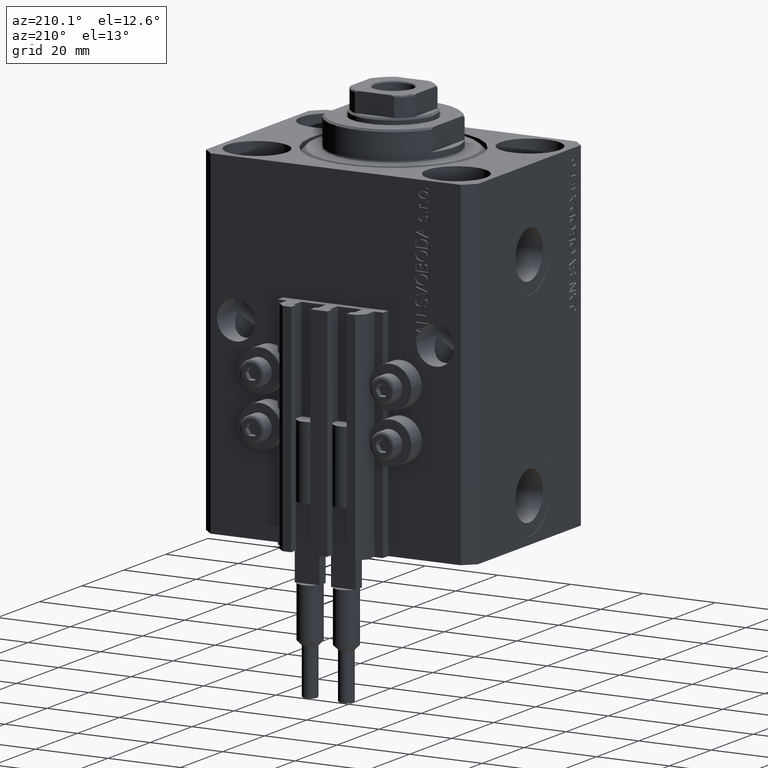
[diagram: clean part render]
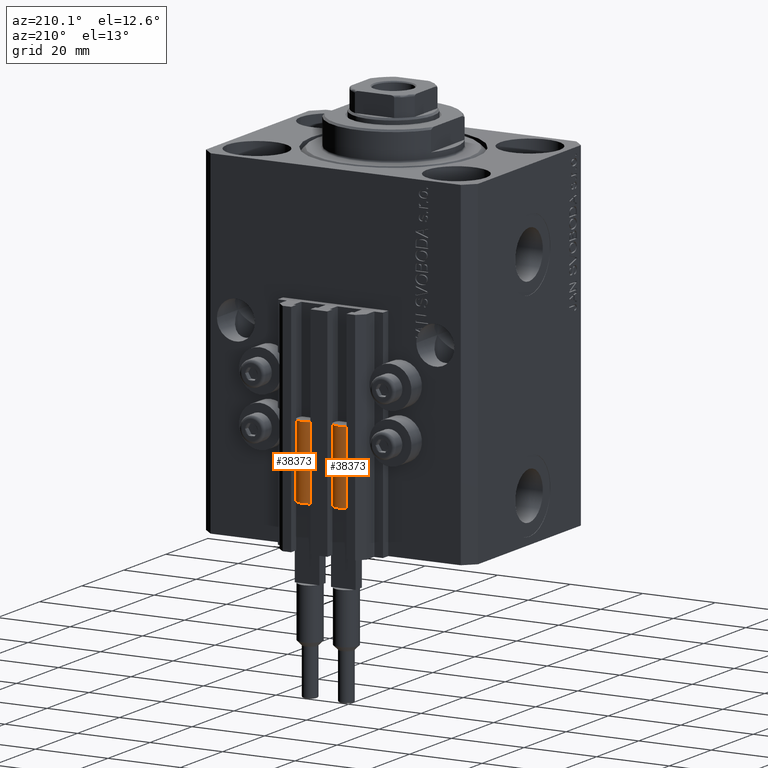
[diagram: same view with one multi-face feature highlighted, each face labeled with its STEP entity id]
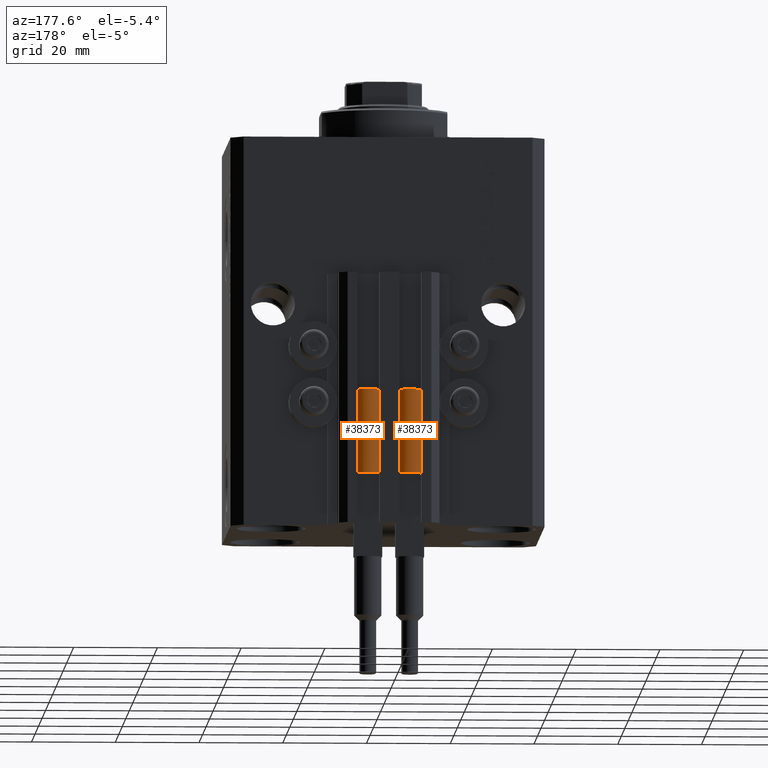
[diagram: same view with one multi-face feature highlighted, each face labeled with its STEP entity id]
A machine part, auxiliary view. The highlighted faces form ONE feature: a constant-radius fillet chain: 2 tangent blend faces with common blend radius 3.4 mm. The faces share edges in the B-rep.
A second angle (auxiliary view) of the same feature is appended — it is thin or edge-on in the first view.
Their STEP definitions:
[1] entity #38373 (Cylinder):
#130 = CARTESIAN_POINT ( 'NONE',  ( 0.000000000000000000, 0.000000000000000000, 20.00000000000000000 ) ) ;
#1559 = CARTESIAN_POINT ( 'NONE',  ( -3.399999999999999467, -4.915049848600952119E-16, 20.00000000000000000 ) ) ;
#3089 = CARTESIAN_POINT ( 'NONE',  ( 0.000000000000000000, 0.000000000000000000, 20.00000000000000000 ) ) ;
#3621 = AXIS2_PLACEMENT_3D ( 'NONE', #8976, #31358, #27260 ) ;
#3744 = VERTEX_POINT ( 'NONE', #26042 ) ;
#4421 = CIRCLE ( 'NONE', #19223, 3.400000000000000355 ) ;
#5318 = FACE_OUTER_BOUND ( 'NONE', #16801, .T. ) ;
#6506 = CARTESIAN_POINT ( 'NONE',  ( 3.400000000000000355, 0.000000000000000000, 20.00000000000000000 ) ) ;
#7310 = CIRCLE ( 'NONE', #29096, 3.400000000000000355 ) ;
#7380 = VECTOR ( 'NONE', #9271, 1000.000000000000000 ) ;
#8976 = CARTESIAN_POINT ( 'NONE',  ( 0.000000000000000000, 0.000000000000000000, 20.00000000000000000 ) ) ;
#9271 = DIRECTION ( 'NONE',  ( -0.000000000000000000, -0.000000000000000000, -1.000000000000000000 ) ) ;
#9299 = CARTESIAN_POINT ( 'NONE',  ( 3.400000000000000355, 4.163799117101001052E-16, 0.000000000000000000 ) ) ;
#9605 = CIRCLE ( 'NONE', #31337, 3.400000000000000355 ) ;
#9788 = ORIENTED_EDGE ( 'NONE', *, *, #41863, .F. ) ;
#11339 = LINE ( 'NONE', #47901, #19130 ) ;
#11717 = EDGE_CURVE ( 'NONE', #46635, #11734, #38596, .T. ) ;
#11734 = VERTEX_POINT ( 'NONE', #47213 ) ;
#12396 = CYLINDRICAL_SURFACE ( 'NONE', #3621, 3.400000000000000355 ) ;
#16439 = ORIENTED_EDGE ( 'NONE', *, *, #33607, .F. ) ;
#16801 = EDGE_LOOP ( 'NONE', ( #9788, #47756, #39724, #16439, #47506, #24953 ) ) ;
#18203 = DIRECTION ( 'NONE',  ( 0.000000000000000000, 0.000000000000000000, 1.000000000000000000 ) ) ;
#19130 = VECTOR ( 'NONE', #44711, 1000.000000000000000 ) ;
#19223 = AXIS2_PLACEMENT_3D ( 'NONE', #42965, #24942, #31494 ) ;
#24942 = DIRECTION ( 'NONE',  ( 0.000000000000000000, 0.000000000000000000, 1.000000000000000000 ) ) ;
#24953 = ORIENTED_EDGE ( 'NONE', *, *, #11717, .F. ) ;
#26042 = CARTESIAN_POINT ( 'NONE',  ( -3.400000000000000355, 0.000000000000000000, 0.000000000000000000 ) ) ;
#26142 = AXIS2_PLACEMENT_3D ( 'NONE', #3089, #18203, #28927 ) ;
#26221 = CARTESIAN_POINT ( 'NONE',  ( 0.000000000000000000, 0.000000000000000000, 0.000000000000000000 ) ) ;
#26374 = EDGE_CURVE ( 'NONE', #42919, #3744, #9605, .T. ) ;
#27260 = DIRECTION ( 'NONE',  ( -1.000000000000000000, 0.000000000000000000, 0.000000000000000000 ) ) ;
#27458 = VERTEX_POINT ( 'NONE', #1559 ) ;
#27784 = LINE ( 'NONE', #38740, #7380 ) ;
#28927 = DIRECTION ( 'NONE',  ( 1.000000000000000000, 0.000000000000000000, 0.000000000000000000 ) ) ;
#29096 = AXIS2_PLACEMENT_3D ( 'NONE', #130, #29834, #44709 ) ;
#29834 = DIRECTION ( 'NONE',  ( 0.000000000000000000, 0.000000000000000000, 1.000000000000000000 ) ) ;
#31337 = AXIS2_PLACEMENT_3D ( 'NONE', #26221, #33997, #34241 ) ;
#31358 = DIRECTION ( 'NONE',  ( -0.000000000000000000, -0.000000000000000000, -1.000000000000000000 ) ) ;
#31391 = EDGE_CURVE ( 'NONE', #11734, #27458, #7310, .T. ) ;
#31494 = DIRECTION ( 'NONE',  ( 1.000000000000000000, 0.000000000000000000, 0.000000000000000000 ) ) ;
#32272 = CARTESIAN_POINT ( 'NONE',  ( 3.051229260478471428, 1.500000000000000000, 20.00000000000000000 ) ) ;
#33607 = EDGE_CURVE ( 'NONE', #27458, #3744, #27784, .T. ) ;
#33997 = DIRECTION ( 'NONE',  ( 0.000000000000000000, 0.000000000000000000, 1.000000000000000000 ) ) ;
#34241 = DIRECTION ( 'NONE',  ( 1.000000000000000000, 0.000000000000000000, 0.000000000000000000 ) ) ;
#36178 = EDGE_CURVE ( 'NONE', #46175, #42919, #11339, .T. ) ;
#38373 = ADVANCED_FACE ( 'NONE', ( #5318 ), #12396, .T. ) ;
#38596 = CIRCLE ( 'NONE', #26142, 3.400000000000000355 ) ;
#38740 = CARTESIAN_POINT ( 'NONE',  ( -3.400000000000000355, 0.000000000000000000, 20.00000000000000000 ) ) ;
#39724 = ORIENTED_EDGE ( 'NONE', *, *, #26374, .T. ) ;
#41863 = EDGE_CURVE ( 'NONE', #46175, #46635, #4421, .T. ) ;
#42919 = VERTEX_POINT ( 'NONE', #9299 ) ;
#42965 = CARTESIAN_POINT ( 'NONE',  ( 0.000000000000000000, 0.000000000000000000, 20.00000000000000000 ) ) ;
#44709 = DIRECTION ( 'NONE',  ( 1.000000000000000000, 0.000000000000000000, 0.000000000000000000 ) ) ;
#44711 = DIRECTION ( 'NONE',  ( -0.000000000000000000, -0.000000000000000000, -1.000000000000000000 ) ) ;
#46175 = VERTEX_POINT ( 'NONE', #6506 ) ;
#46635 = VERTEX_POINT ( 'NONE', #32272 ) ;
#47213 = CARTESIAN_POINT ( 'NONE',  ( -3.051229260478471428, 1.500000000000000000, 20.00000000000000000 ) ) ;
#47506 = ORIENTED_EDGE ( 'NONE', *, *, #31391, .F. ) ;
#47756 = ORIENTED_EDGE ( 'NONE', *, *, #36178, .T. ) ;
#47901 = CARTESIAN_POINT ( 'NONE',  ( 3.400000000000000355, 4.163799117101001052E-16, 20.00000000000000000 ) ) ;
[2] entity #38373 (Cylinder):
#130 = CARTESIAN_POINT ( 'NONE',  ( 0.000000000000000000, 0.000000000000000000, 20.00000000000000000 ) ) ;
#1559 = CARTESIAN_POINT ( 'NONE',  ( -3.399999999999999467, -4.915049848600952119E-16, 20.00000000000000000 ) ) ;
#3089 = CARTESIAN_POINT ( 'NONE',  ( 0.000000000000000000, 0.000000000000000000, 20.00000000000000000 ) ) ;
#3621 = AXIS2_PLACEMENT_3D ( 'NONE', #8976, #31358, #27260 ) ;
#3744 = VERTEX_POINT ( 'NONE', #26042 ) ;
#4421 = CIRCLE ( 'NONE', #19223, 3.400000000000000355 ) ;
#5318 = FACE_OUTER_BOUND ( 'NONE', #16801, .T. ) ;
#6506 = CARTESIAN_POINT ( 'NONE',  ( 3.400000000000000355, 0.000000000000000000, 20.00000000000000000 ) ) ;
#7310 = CIRCLE ( 'NONE', #29096, 3.400000000000000355 ) ;
#7380 = VECTOR ( 'NONE', #9271, 1000.000000000000000 ) ;
#8976 = CARTESIAN_POINT ( 'NONE',  ( 0.000000000000000000, 0.000000000000000000, 20.00000000000000000 ) ) ;
#9271 = DIRECTION ( 'NONE',  ( -0.000000000000000000, -0.000000000000000000, -1.000000000000000000 ) ) ;
#9299 = CARTESIAN_POINT ( 'NONE',  ( 3.400000000000000355, 4.163799117101001052E-16, 0.000000000000000000 ) ) ;
#9605 = CIRCLE ( 'NONE', #31337, 3.400000000000000355 ) ;
#9788 = ORIENTED_EDGE ( 'NONE', *, *, #41863, .F. ) ;
#11339 = LINE ( 'NONE', #47901, #19130 ) ;
#11717 = EDGE_CURVE ( 'NONE', #46635, #11734, #38596, .T. ) ;
#11734 = VERTEX_POINT ( 'NONE', #47213 ) ;
#12396 = CYLINDRICAL_SURFACE ( 'NONE', #3621, 3.400000000000000355 ) ;
#16439 = ORIENTED_EDGE ( 'NONE', *, *, #33607, .F. ) ;
#16801 = EDGE_LOOP ( 'NONE', ( #9788, #47756, #39724, #16439, #47506, #24953 ) ) ;
#18203 = DIRECTION ( 'NONE',  ( 0.000000000000000000, 0.000000000000000000, 1.000000000000000000 ) ) ;
#19130 = VECTOR ( 'NONE', #44711, 1000.000000000000000 ) ;
#19223 = AXIS2_PLACEMENT_3D ( 'NONE', #42965, #24942, #31494 ) ;
#24942 = DIRECTION ( 'NONE',  ( 0.000000000000000000, 0.000000000000000000, 1.000000000000000000 ) ) ;
#24953 = ORIENTED_EDGE ( 'NONE', *, *, #11717, .F. ) ;
#26042 = CARTESIAN_POINT ( 'NONE',  ( -3.400000000000000355, 0.000000000000000000, 0.000000000000000000 ) ) ;
#26142 = AXIS2_PLACEMENT_3D ( 'NONE', #3089, #18203, #28927 ) ;
#26221 = CARTESIAN_POINT ( 'NONE',  ( 0.000000000000000000, 0.000000000000000000, 0.000000000000000000 ) ) ;
#26374 = EDGE_CURVE ( 'NONE', #42919, #3744, #9605, .T. ) ;
#27260 = DIRECTION ( 'NONE',  ( -1.000000000000000000, 0.000000000000000000, 0.000000000000000000 ) ) ;
#27458 = VERTEX_POINT ( 'NONE', #1559 ) ;
#27784 = LINE ( 'NONE', #38740, #7380 ) ;
#28927 = DIRECTION ( 'NONE',  ( 1.000000000000000000, 0.000000000000000000, 0.000000000000000000 ) ) ;
#29096 = AXIS2_PLACEMENT_3D ( 'NONE', #130, #29834, #44709 ) ;
#29834 = DIRECTION ( 'NONE',  ( 0.000000000000000000, 0.000000000000000000, 1.000000000000000000 ) ) ;
#31337 = AXIS2_PLACEMENT_3D ( 'NONE', #26221, #33997, #34241 ) ;
#31358 = DIRECTION ( 'NONE',  ( -0.000000000000000000, -0.000000000000000000, -1.000000000000000000 ) ) ;
#31391 = EDGE_CURVE ( 'NONE', #11734, #27458, #7310, .T. ) ;
#31494 = DIRECTION ( 'NONE',  ( 1.000000000000000000, 0.000000000000000000, 0.000000000000000000 ) ) ;
#32272 = CARTESIAN_POINT ( 'NONE',  ( 3.051229260478471428, 1.500000000000000000, 20.00000000000000000 ) ) ;
#33607 = EDGE_CURVE ( 'NONE', #27458, #3744, #27784, .T. ) ;
#33997 = DIRECTION ( 'NONE',  ( 0.000000000000000000, 0.000000000000000000, 1.000000000000000000 ) ) ;
#34241 = DIRECTION ( 'NONE',  ( 1.000000000000000000, 0.000000000000000000, 0.000000000000000000 ) ) ;
#36178 = EDGE_CURVE ( 'NONE', #46175, #42919, #11339, .T. ) ;
#38373 = ADVANCED_FACE ( 'NONE', ( #5318 ), #12396, .T. ) ;
#38596 = CIRCLE ( 'NONE', #26142, 3.400000000000000355 ) ;
#38740 = CARTESIAN_POINT ( 'NONE',  ( -3.400000000000000355, 0.000000000000000000, 20.00000000000000000 ) ) ;
#39724 = ORIENTED_EDGE ( 'NONE', *, *, #26374, .T. ) ;
#41863 = EDGE_CURVE ( 'NONE', #46175, #46635, #4421, .T. ) ;
#42919 = VERTEX_POINT ( 'NONE', #9299 ) ;
#42965 = CARTESIAN_POINT ( 'NONE',  ( 0.000000000000000000, 0.000000000000000000, 20.00000000000000000 ) ) ;
#44709 = DIRECTION ( 'NONE',  ( 1.000000000000000000, 0.000000000000000000, 0.000000000000000000 ) ) ;
#44711 = DIRECTION ( 'NONE',  ( -0.000000000000000000, -0.000000000000000000, -1.000000000000000000 ) ) ;
#46175 = VERTEX_POINT ( 'NONE', #6506 ) ;
#46635 = VERTEX_POINT ( 'NONE', #32272 ) ;
#47213 = CARTESIAN_POINT ( 'NONE',  ( -3.051229260478471428, 1.500000000000000000, 20.00000000000000000 ) ) ;
#47506 = ORIENTED_EDGE ( 'NONE', *, *, #31391, .F. ) ;
#47756 = ORIENTED_EDGE ( 'NONE', *, *, #36178, .T. ) ;
#47901 = CARTESIAN_POINT ( 'NONE',  ( 3.400000000000000355, 4.163799117101001052E-16, 20.00000000000000000 ) ) ;